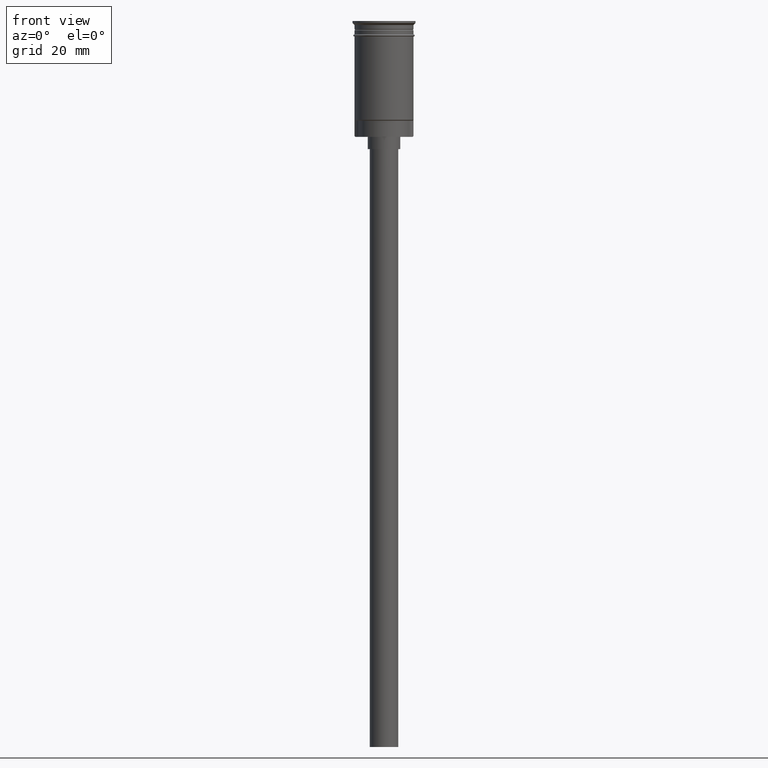
[diagram: clean part render]
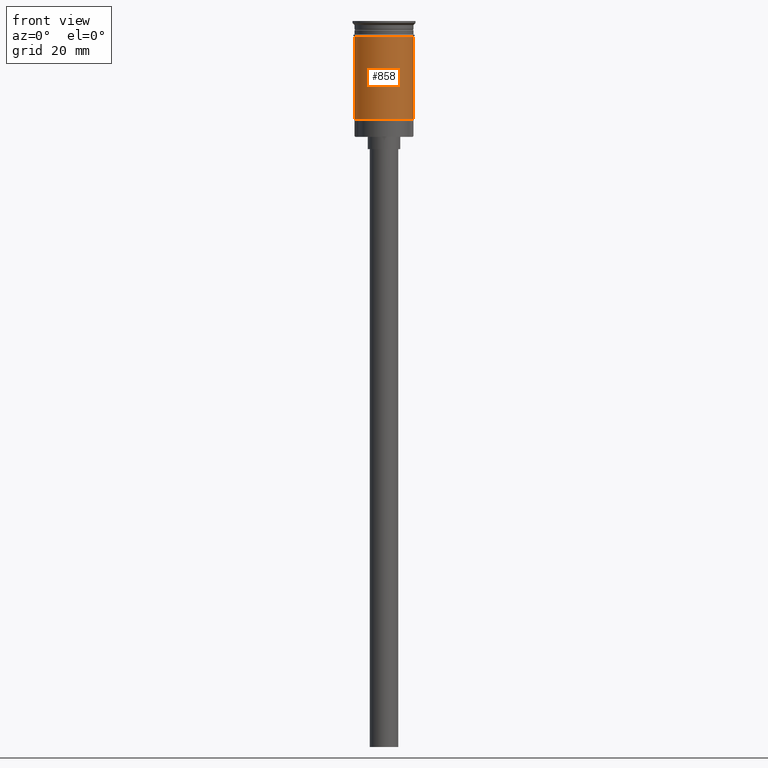
[diagram: same view with one face highlighted and labeled with its STEP entity id]
A machine part, front view. The second image highlights one B-rep face of the part: STEP entity #858.
In plain terms, the highlighted cylindrical surface (edge-blend (fillet) strip) has radius 7.25 mm, axis along (-0, -0, 1).
Its self-contained STEP definition (entity closure, byte-faithful):
#46 = DIRECTION ( 'NONE',  ( 1.000000000000000000, 0.000000000000000000, 0.000000000000000000 ) ) ;
#53 = ORIENTED_EDGE ( 'NONE', *, *, #447, .F. ) ;
#71 = DIRECTION ( 'NONE',  ( -0.000000000000000000, -0.000000000000000000, 1.000000000000000000 ) ) ;
#98 = EDGE_CURVE ( 'NONE', #1457, #1281, #1050, .T. ) ;
#105 = CARTESIAN_POINT ( 'NONE',  ( 0.000000000000000000, 0.000000000000000000, -24.29999999999999361 ) ) ;
#137 = CARTESIAN_POINT ( 'NONE',  ( -7.249999999999997335, 8.878689293818306130E-16, 0.000000000000000000 ) ) ;
#149 = ORIENTED_EDGE ( 'NONE', *, *, #1196, .T. ) ;
#166 = DIRECTION ( 'NONE',  ( -0.000000000000000000, -0.000000000000000000, 1.000000000000000000 ) ) ;
#311 = CARTESIAN_POINT ( 'NONE',  ( 7.249999999999997335, 0.000000000000000000, 0.000000000000000000 ) ) ;
#383 = DIRECTION ( 'NONE',  ( 1.000000000000000000, 0.000000000000000000, 0.000000000000000000 ) ) ;
#440 = VERTEX_POINT ( 'NONE', #626 ) ;
#447 = EDGE_CURVE ( 'NONE', #440, #750, #1378, .T. ) ;
#475 = CIRCLE ( 'NONE', #557, 7.249999999999999112 ) ;
#557 = AXIS2_PLACEMENT_3D ( 'NONE', #1308, #166, #46 ) ;
#626 = CARTESIAN_POINT ( 'NONE',  ( -7.249999999999994671, 0.000000000000000000, -24.29999999999999361 ) ) ;
#638 = DIRECTION ( 'NONE',  ( -0.000000000000000000, -0.000000000000000000, 1.000000000000000000 ) ) ;
#645 = FACE_OUTER_BOUND ( 'NONE', #1365, .T. ) ;
#658 = CYLINDRICAL_SURFACE ( 'NONE', #746, 7.249999999999997335 ) ;
#719 = VECTOR ( 'NONE', #638, 1000.000000000000000 ) ;
#720 = DIRECTION ( 'NONE',  ( -0.000000000000000000, -0.000000000000000000, 1.000000000000000000 ) ) ;
#746 = AXIS2_PLACEMENT_3D ( 'NONE', #888, #1019, #383 ) ;
#750 = VERTEX_POINT ( 'NONE', #832 ) ;
#793 = ORIENTED_EDGE ( 'NONE', *, *, #1387, .F. ) ;
#832 = CARTESIAN_POINT ( 'NONE',  ( -7.250000000000000000, 8.878689293818310074E-16, -3.799999999999998490 ) ) ;
#858 = ADVANCED_FACE ( 'NONE', ( #645 ), #658, .T. ) ;
#888 = CARTESIAN_POINT ( 'NONE',  ( 0.000000000000000000, 0.000000000000000000, 0.000000000000000000 ) ) ;
#960 = ORIENTED_EDGE ( 'NONE', *, *, #98, .T. ) ;
#998 = CIRCLE ( 'NONE', #1078, 7.249999999999997335 ) ;
#1019 = DIRECTION ( 'NONE',  ( -0.000000000000000000, -0.000000000000000000, 1.000000000000000000 ) ) ;
#1050 = LINE ( 'NONE', #311, #1390 ) ;
#1078 = AXIS2_PLACEMENT_3D ( 'NONE', #105, #720, #1226 ) ;
#1119 = CARTESIAN_POINT ( 'NONE',  ( 7.249999999999999112, 0.000000000000000000, -3.799999999999998490 ) ) ;
#1196 = EDGE_CURVE ( 'NONE', #440, #1457, #998, .T. ) ;
#1226 = DIRECTION ( 'NONE',  ( -1.000000000000000000, 0.000000000000000000, 0.000000000000000000 ) ) ;
#1281 = VERTEX_POINT ( 'NONE', #1119 ) ;
#1308 = CARTESIAN_POINT ( 'NONE',  ( 0.000000000000000000, 0.000000000000000000, -3.799999999999998490 ) ) ;
#1365 = EDGE_LOOP ( 'NONE', ( #53, #149, #960, #793 ) ) ;
#1378 = LINE ( 'NONE', #137, #719 ) ;
#1387 = EDGE_CURVE ( 'NONE', #750, #1281, #475, .T. ) ;
#1390 = VECTOR ( 'NONE', #71, 1000.000000000000000 ) ;
#1433 = CARTESIAN_POINT ( 'NONE',  ( 7.249999999999997335, 8.878689293818308102E-16, -24.29999999999999361 ) ) ;
#1457 = VERTEX_POINT ( 'NONE', #1433 ) ;